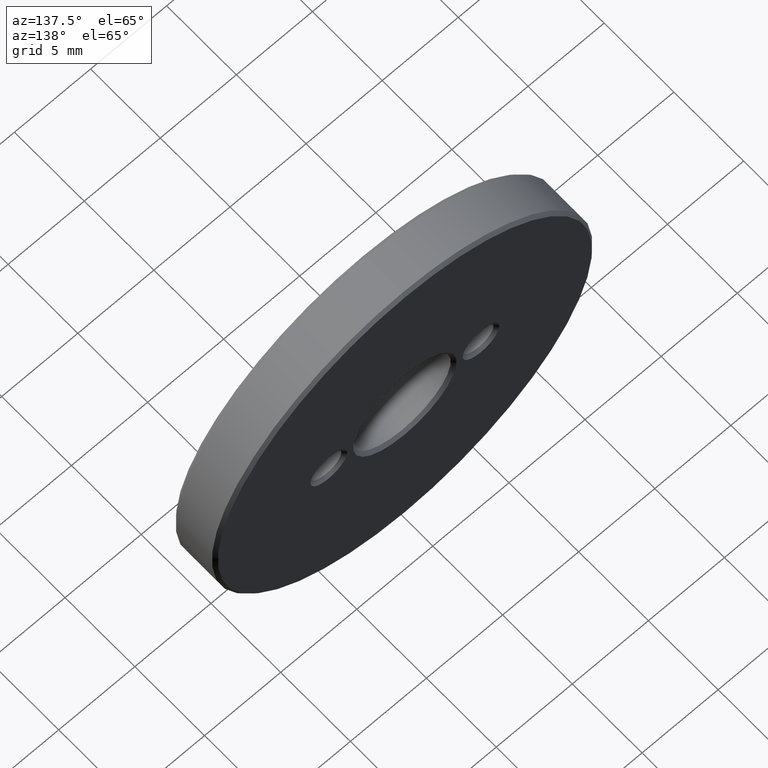
[diagram: clean part render]
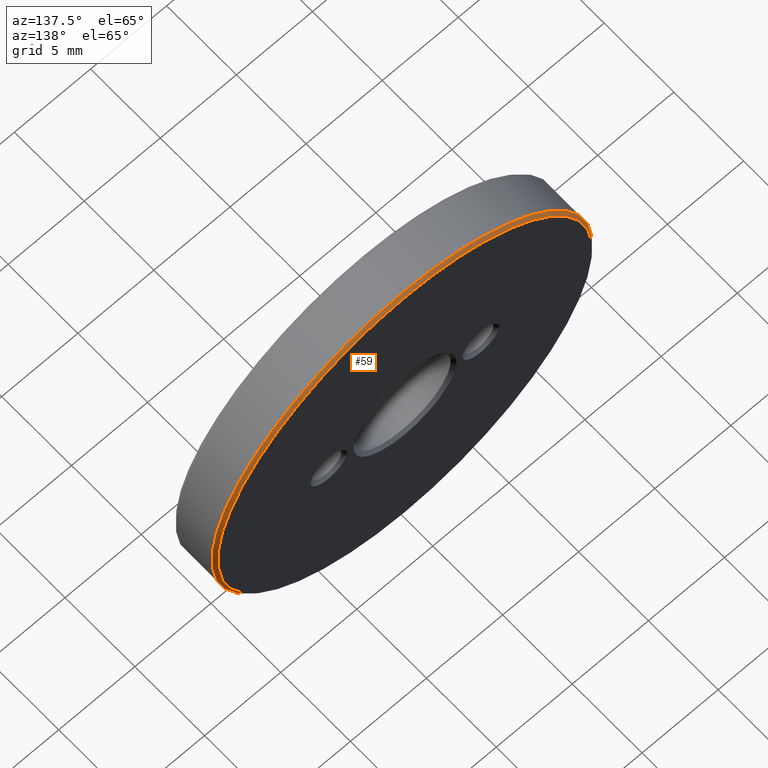
[diagram: same view with one face highlighted and labeled with its STEP entity id]
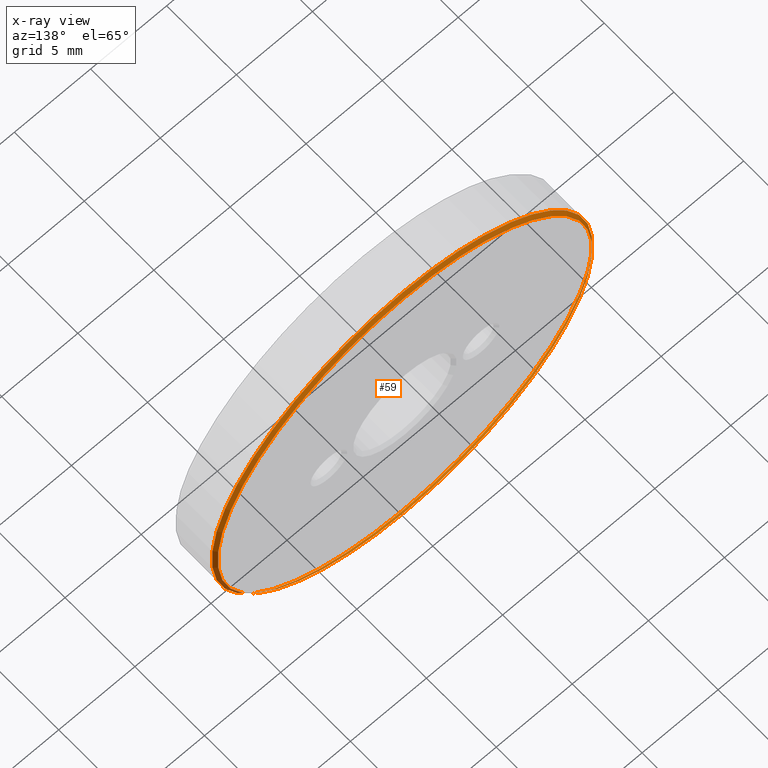
[diagram: x-ray of the same camera — body ghosted, the highlighted face saturated]
A machine part, auxiliary view. The second image highlights one B-rep face of the part: STEP entity #59.
The next image is the same camera in x-ray: the body ghosted, the highlighted face saturated — about 0% of this face is hidden behind the body in this view.
In plain terms, the highlighted conical surface has half-angle 45 deg.
Its self-contained STEP definition (entity closure, byte-faithful):
#4 = DIRECTION ( 'NONE',  ( 0.000000000000000000, 0.000000000000000000, 1.000000000000000000 ) ) ;
#8 = CARTESIAN_POINT ( 'NONE',  ( 0.000000000000000000, 2.800000000000002931, 0.000000000000000000 ) ) ;
#25 = DIRECTION ( 'NONE',  ( 0.000000000000000000, 1.000000000000000000, 0.000000000000000000 ) ) ;
#32 = CIRCLE ( 'NONE', #348, 12.30000000000000249 ) ;
#53 = DIRECTION ( 'NONE',  ( 0.000000000000000000, 0.000000000000000000, 1.000000000000000000 ) ) ;
#59 = ADVANCED_FACE ( 'NONE', ( #237, #85 ), #174, .T. ) ;
#62 = EDGE_CURVE ( 'NONE', #383, #383, #32, .T. ) ;
#71 = VERTEX_POINT ( 'NONE', #77 ) ;
#77 = CARTESIAN_POINT ( 'NONE',  ( 0.000000000000000000, 2.800000000000002931, 12.50000000000000000 ) ) ;
#85 = FACE_BOUND ( 'NONE', #166, .T. ) ;
#150 = CARTESIAN_POINT ( 'NONE',  ( 0.000000000000000000, 3.000000000000000000, 0.000000000000000000 ) ) ;
#159 = EDGE_CURVE ( 'NONE', #71, #71, #259, .T. ) ;
#162 = ORIENTED_EDGE ( 'NONE', *, *, #62, .F. ) ;
#166 = EDGE_LOOP ( 'NONE', ( #162 ) ) ;
#174 = CONICAL_SURFACE ( 'NONE', #381, 12.30000000000000249, 0.7853981633974526089 ) ;
#201 = AXIS2_PLACEMENT_3D ( 'NONE', #8, #344, #4 ) ;
#204 = ORIENTED_EDGE ( 'NONE', *, *, #159, .F. ) ;
#208 = EDGE_LOOP ( 'NONE', ( #204 ) ) ;
#235 = DIRECTION ( 'NONE',  ( 0.000000000000000000, 0.000000000000000000, -1.000000000000000000 ) ) ;
#237 = FACE_OUTER_BOUND ( 'NONE', #208, .T. ) ;
#259 = CIRCLE ( 'NONE', #201, 12.50000000000000000 ) ;
#287 = CARTESIAN_POINT ( 'NONE',  ( 0.000000000000000000, 3.000000000000000000, 12.30000000000000249 ) ) ;
#331 = DIRECTION ( 'NONE',  ( 0.000000000000000000, -1.000000000000000000, 0.000000000000000000 ) ) ;
#344 = DIRECTION ( 'NONE',  ( 0.000000000000000000, -1.000000000000000000, 0.000000000000000000 ) ) ;
#348 = AXIS2_PLACEMENT_3D ( 'NONE', #150, #25, #53 ) ;
#381 = AXIS2_PLACEMENT_3D ( 'NONE', #397, #331, #235 ) ;
#383 = VERTEX_POINT ( 'NONE', #287 ) ;
#397 = CARTESIAN_POINT ( 'NONE',  ( 0.000000000000000000, 3.000000000000000000, 0.000000000000000000 ) ) ;